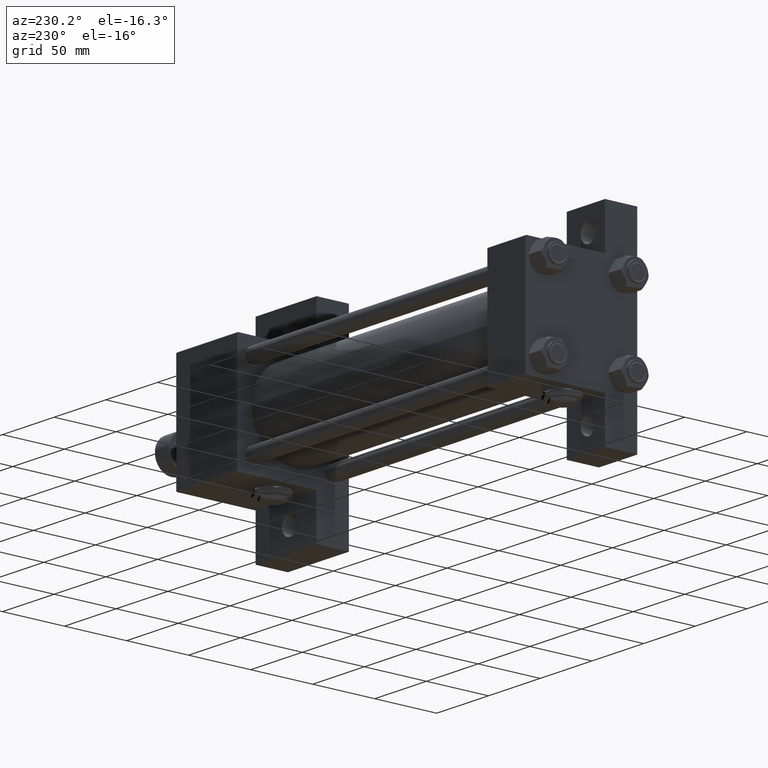
[diagram: clean part render]
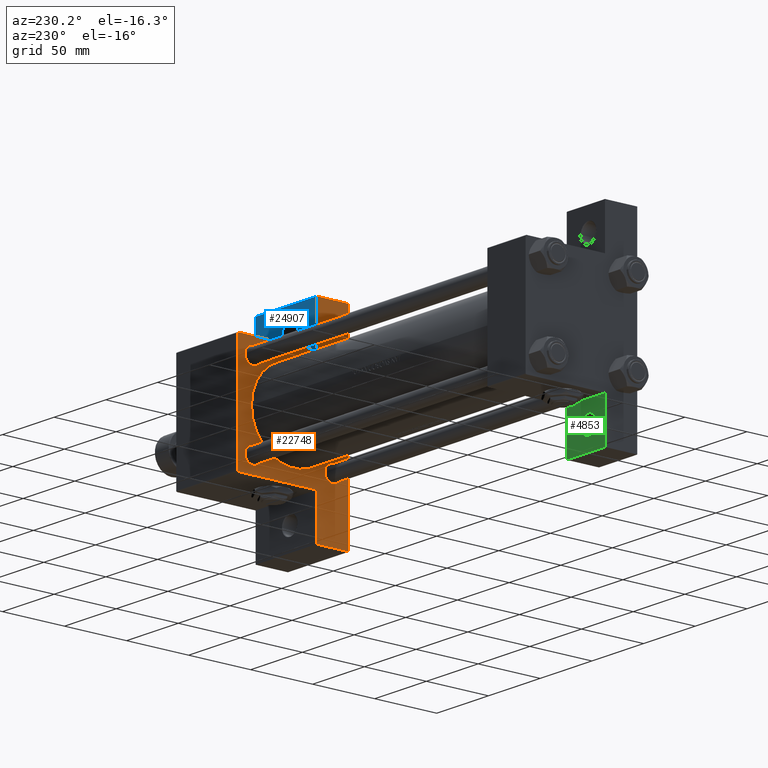
[diagram: same view with three faces highlighted in distinct colors, each labeled with its STEP entity id]
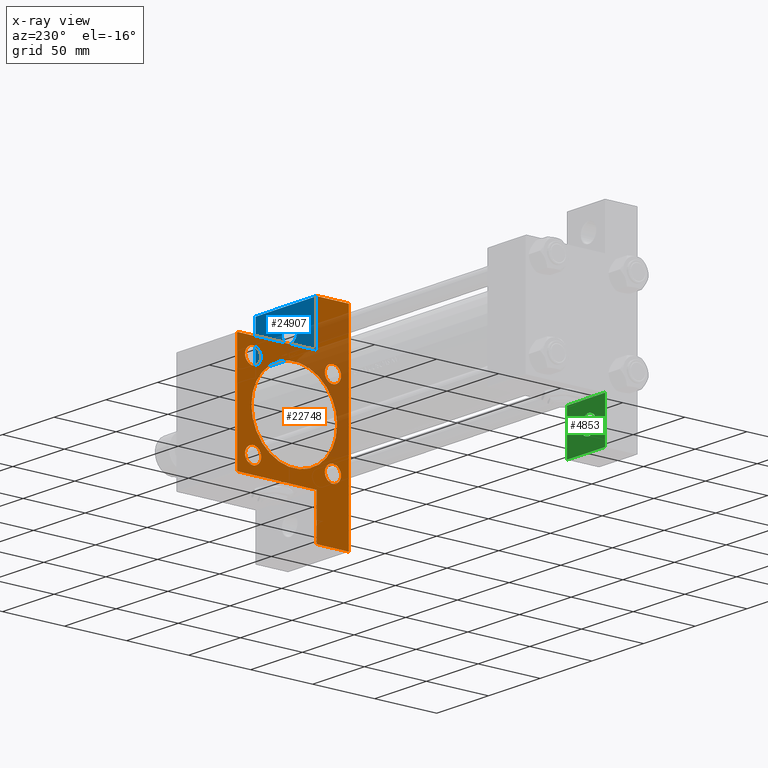
[diagram: x-ray of the same camera — body ghosted, the three highlighted faces saturated]
A machine part, auxiliary view with three faces highlighted in distinct colors.
The next image is the same camera in x-ray (body ghosted, the three faces saturated) — at least one of them is partly hidden behind the body in this view.
Their STEP definitions:

[orange] entity #22748 — the highlighted planar face has unit normal (-1, 0, -0).
#385 = DIRECTION ( 'NONE',  ( -1.000000000000000000, 0.000000000000000000, -0.000000000000000000 ) ) ;
#1907 = VECTOR ( 'NONE', #33787, 1000.000000000000000 ) ;
#2258 = DIRECTION ( 'NONE',  ( 0.000000000000000000, 0.000000000000000000, 1.000000000000000000 ) ) ;
#2765 = LINE ( 'NONE', #18251, #29586 ) ;
#2808 = CARTESIAN_POINT ( 'NONE',  ( 278.9999999999999432, -80.00000000000001421, -45.00000000000000000 ) ) ;
#2852 = ORIENTED_EDGE ( 'NONE', *, *, #48202, .T. ) ;
#2869 = EDGE_CURVE ( 'NONE', #24307, #32228, #24601, .T. ) ;
#2929 = VECTOR ( 'NONE', #34741, 1000.000000000000114 ) ;
#3285 = CARTESIAN_POINT ( 'NONE',  ( 278.9999999999999432, 45.00000000000001421, -45.00000000000000000 ) ) ;
#3676 = EDGE_CURVE ( 'NONE', #30669, #20065, #7955, .T. ) ;
#3980 = VERTEX_POINT ( 'NONE', #45172 ) ;
#4605 = ORIENTED_EDGE ( 'NONE', *, *, #29966, .T. ) ;
#4906 = EDGE_LOOP ( 'NONE', ( #31199, #22990 ) ) ;
#4946 = CARTESIAN_POINT ( 'NONE',  ( 278.9999999999999432, 4.225031457058367344E-15, -35.50000000000000711 ) ) ;
#5421 = CIRCLE ( 'NONE', #13520, 6.499999999999999112 ) ;
#6013 = VECTOR ( 'NONE', #11757, 1000.000000000000000 ) ;
#6314 = VERTEX_POINT ( 'NONE', #41020 ) ;
#7332 = CIRCLE ( 'NONE', #21135, 6.500000000000012434 ) ;
#7735 = CARTESIAN_POINT ( 'NONE',  ( 278.9999999999999432, 0.000000000000000000, 0.000000000000000000 ) ) ;
#7955 = LINE ( 'NONE', #46481, #6013 ) ;
#8130 = DIRECTION ( 'NONE',  ( 1.000000000000000000, 0.000000000000000000, 0.000000000000000000 ) ) ;
#8689 = EDGE_CURVE ( 'NONE', #41772, #28007, #31056, .T. ) ;
#8759 = CIRCLE ( 'NONE', #12024, 34.49999999999999289 ) ;
#9835 = ORIENTED_EDGE ( 'NONE', *, *, #27799, .T. ) ;
#10295 = CARTESIAN_POINT ( 'NONE',  ( 278.9999999999999432, -80.00000000000001421, -19.00000000000000000 ) ) ;
#10333 = ORIENTED_EDGE ( 'NONE', *, *, #11577, .T. ) ;
#10691 = EDGE_CURVE ( 'NONE', #36422, #20065, #21813, .T. ) ;
#10734 = ORIENTED_EDGE ( 'NONE', *, *, #18799, .T. ) ;
#11437 = CARTESIAN_POINT ( 'NONE',  ( 278.9999999999999432, 44.74999999999997158, 44.74999999999997158 ) ) ;
#11577 = EDGE_CURVE ( 'NONE', #35643, #25934, #30694, .T. ) ;
#11684 = EDGE_CURVE ( 'NONE', #32228, #24307, #29648, .T. ) ;
#11757 = DIRECTION ( 'NONE',  ( 0.000000000000000000, 0.000000000000000000, -1.000000000000000000 ) ) ;
#11915 = DIRECTION ( 'NONE',  ( 1.000000000000000000, 0.000000000000000000, 0.000000000000000000 ) ) ;
#12024 = AXIS2_PLACEMENT_3D ( 'NONE', #41599, #30451, #45916 ) ;
#12066 = ORIENTED_EDGE ( 'NONE', *, *, #26638, .T. ) ;
#12310 = FACE_BOUND ( 'NONE', #41695, .T. ) ;
#12560 = DIRECTION ( 'NONE',  ( 0.000000000000000000, 0.000000000000000000, 1.000000000000000000 ) ) ;
#12563 = PLANE ( 'NONE',  #29882 ) ;
#12845 = AXIS2_PLACEMENT_3D ( 'NONE', #25216, #45454, #21665 ) ;
#13116 = ORIENTED_EDGE ( 'NONE', *, *, #24310, .T. ) ;
#13293 = DIRECTION ( 'NONE',  ( 0.000000000000000000, 0.000000000000000000, -1.000000000000000000 ) ) ;
#13520 = AXIS2_PLACEMENT_3D ( 'NONE', #49169, #41313, #40802 ) ;
#13734 = DIRECTION ( 'NONE',  ( 0.000000000000000000, 0.000000000000000000, -1.000000000000000000 ) ) ;
#14522 = EDGE_LOOP ( 'NONE', ( #38354, #10333, #12066, #2852, #10734, #15397, #49712, #45863, #22803, #46455 ) ) ;
#15397 = ORIENTED_EDGE ( 'NONE', *, *, #10691, .T. ) ;
#15410 = DIRECTION ( 'NONE',  ( 1.000000000000000000, 0.000000000000000000, 0.000000000000000000 ) ) ;
#15617 = EDGE_CURVE ( 'NONE', #44775, #6314, #20085, .T. ) ;
#15674 = VERTEX_POINT ( 'NONE', #4946 ) ;
#16070 = ORIENTED_EDGE ( 'NONE', *, *, #15617, .T. ) ;
#16254 = CARTESIAN_POINT ( 'NONE',  ( 278.9999999999999432, 79.99999999999995737, -19.00000000000000000 ) ) ;
#16638 = EDGE_CURVE ( 'NONE', #27115, #35605, #34659, .T. ) ;
#17576 = VERTEX_POINT ( 'NONE', #28979 ) ;
#18251 = CARTESIAN_POINT ( 'NONE',  ( 278.9999999999999432, 45.00000000000001421, 45.00000000000000000 ) ) ;
#18761 = DIRECTION ( 'NONE',  ( 0.000000000000000000, -1.000000000000000000, 0.000000000000000000 ) ) ;
#18799 = EDGE_CURVE ( 'NONE', #30665, #36422, #32717, .T. ) ;
#19273 = CARTESIAN_POINT ( 'NONE',  ( 278.9999999999999432, 45.00000000000001421, 44.49999999999994316 ) ) ;
#19363 = CARTESIAN_POINT ( 'NONE',  ( 278.9999999999999432, -45.00000000000000000, 44.99999999999998579 ) ) ;
#19919 = FACE_BOUND ( 'NONE', #22824, .T. ) ;
#19974 = CARTESIAN_POINT ( 'NONE',  ( 278.9999999999999432, -32.14999999999997726, -32.15000000000001279 ) ) ;
#20065 = VERTEX_POINT ( 'NONE', #2808 ) ;
#20085 = CIRCLE ( 'NONE', #26544, 6.499999999999999112 ) ;
#20536 = DIRECTION ( 'NONE',  ( 0.000000000000000000, 0.000000000000000000, 1.000000000000000000 ) ) ;
#20721 = CARTESIAN_POINT ( 'NONE',  ( 278.9999999999999432, -45.00000000000000000, -19.00000000000000000 ) ) ;
#21135 = AXIS2_PLACEMENT_3D ( 'NONE', #27634, #11915, #20536 ) ;
#21356 = VERTEX_POINT ( 'NONE', #37331 ) ;
#21665 = DIRECTION ( 'NONE',  ( 0.000000000000000000, 0.000000000000000000, 1.000000000000000000 ) ) ;
#21813 = LINE ( 'NONE', #3285, #27996 ) ;
#21821 = EDGE_LOOP ( 'NONE', ( #9835, #25295 ) ) ;
#22613 = AXIS2_PLACEMENT_3D ( 'NONE', #22847, #8130, #38265 ) ;
#22665 = CARTESIAN_POINT ( 'NONE',  ( 278.9999999999999432, 79.99999999999995737, -19.00000000000000000 ) ) ;
#22748 = ADVANCED_FACE ( 'NONE', ( #12310, #27767, #31818, #19919, #39390, #30799 ), #12563, .T. ) ;
#22803 = ORIENTED_EDGE ( 'NONE', *, *, #36170, .F. ) ;
#22824 = EDGE_LOOP ( 'NONE', ( #36397, #41385 ) ) ;
#22842 = CARTESIAN_POINT ( 'NONE',  ( 278.9999999999999432, -45.00000000000000000, 44.49999999999998579 ) ) ;
#22847 = CARTESIAN_POINT ( 'NONE',  ( 278.9999999999999432, -32.14999999999997726, 32.15000000000001279 ) ) ;
#22990 = ORIENTED_EDGE ( 'NONE', *, *, #49450, .T. ) ;
#23537 = VECTOR ( 'NONE', #44623, 1000.000000000000000 ) ;
#23632 = CARTESIAN_POINT ( 'NONE',  ( 278.9999999999999432, 32.14999999999999147, 25.65000000000000213 ) ) ;
#24307 = VERTEX_POINT ( 'NONE', #27410 ) ;
#24310 = EDGE_CURVE ( 'NONE', #43933, #17576, #44458, .T. ) ;
#24368 = CIRCLE ( 'NONE', #46190, 34.49999999999999289 ) ;
#24601 = CIRCLE ( 'NONE', #47244, 6.500000000000012434 ) ;
#24821 = CARTESIAN_POINT ( 'NONE',  ( 278.9999999999999432, -32.14999999999997726, -25.64999999999999858 ) ) ;
#24903 = CARTESIAN_POINT ( 'NONE',  ( 278.9999999999999432, 79.99999999999995737, -45.00000000000000000 ) ) ;
#25216 = CARTESIAN_POINT ( 'NONE',  ( 278.9999999999999432, 32.14999999999999147, -32.15000000000000568 ) ) ;
#25295 = ORIENTED_EDGE ( 'NONE', *, *, #16638, .T. ) ;
#25456 = VERTEX_POINT ( 'NONE', #20721 ) ;
#25773 = DIRECTION ( 'NONE',  ( 0.000000000000000000, 1.000000000000000000, 0.000000000000000000 ) ) ;
#25934 = VERTEX_POINT ( 'NONE', #19273 ) ;
#25977 = LINE ( 'NONE', #22665, #37015 ) ;
#26430 = VECTOR ( 'NONE', #42716, 1000.000000000000114 ) ;
#26544 = AXIS2_PLACEMENT_3D ( 'NONE', #49799, #36334, #12560 ) ;
#26638 = EDGE_CURVE ( 'NONE', #25934, #3980, #32232, .T. ) ;
#27115 = VERTEX_POINT ( 'NONE', #41742 ) ;
#27410 = CARTESIAN_POINT ( 'NONE',  ( 278.9999999999999432, -32.14999999999997726, -38.65000000000002700 ) ) ;
#27616 = EDGE_CURVE ( 'NONE', #21356, #15674, #24368, .T. ) ;
#27634 = CARTESIAN_POINT ( 'NONE',  ( 278.9999999999999432, 32.14999999999999147, -32.15000000000000568 ) ) ;
#27767 = FACE_BOUND ( 'NONE', #42762, .T. ) ;
#27799 = EDGE_CURVE ( 'NONE', #35605, #27115, #7332, .T. ) ;
#27996 = VECTOR ( 'NONE', #18761, 1000.000000000000000 ) ;
#28007 = VERTEX_POINT ( 'NONE', #38948 ) ;
#28979 = CARTESIAN_POINT ( 'NONE',  ( 278.9999999999999432, -32.14999999999997726, 38.65000000000002700 ) ) ;
#29564 = LINE ( 'NONE', #10295, #40239 ) ;
#29586 = VECTOR ( 'NONE', #33680, 1000.000000000000000 ) ;
#29648 = CIRCLE ( 'NONE', #40152, 6.500000000000012434 ) ;
#29717 = CARTESIAN_POINT ( 'NONE',  ( 278.9999999999999432, -32.14999999999997726, 25.64999999999999858 ) ) ;
#29882 = AXIS2_PLACEMENT_3D ( 'NONE', #7735, #385, #34847 ) ;
#29966 = EDGE_CURVE ( 'NONE', #17576, #43933, #45495, .T. ) ;
#30451 = DIRECTION ( 'NONE',  ( 1.000000000000000000, 0.000000000000000000, 0.000000000000000000 ) ) ;
#30665 = VERTEX_POINT ( 'NONE', #16254 ) ;
#30669 = VERTEX_POINT ( 'NONE', #35485 ) ;
#30694 = LINE ( 'NONE', #11437, #2929 ) ;
#30799 = FACE_OUTER_BOUND ( 'NONE', #14522, .T. ) ;
#30854 = DIRECTION ( 'NONE',  ( 0.000000000000000000, 0.000000000000000000, 1.000000000000000000 ) ) ;
#31056 = LINE ( 'NONE', #42966, #26430 ) ;
#31199 = ORIENTED_EDGE ( 'NONE', *, *, #27616, .T. ) ;
#31399 = DIRECTION ( 'NONE',  ( 0.000000000000000000, 0.000000000000000000, 1.000000000000000000 ) ) ;
#31818 = FACE_BOUND ( 'NONE', #21821, .T. ) ;
#32228 = VERTEX_POINT ( 'NONE', #24821 ) ;
#32232 = LINE ( 'NONE', #44874, #23537 ) ;
#32535 = CARTESIAN_POINT ( 'NONE',  ( 278.9999999999999432, 0.000000000000000000, -1.000000000000007772 ) ) ;
#32717 = LINE ( 'NONE', #49178, #44530 ) ;
#33680 = DIRECTION ( 'NONE',  ( 0.000000000000000000, -1.000000000000000000, -1.541976423090495140E-16 ) ) ;
#33787 = DIRECTION ( 'NONE',  ( 0.000000000000000000, 7.709882115452478166E-17, -1.000000000000000000 ) ) ;
#33914 = DIRECTION ( 'NONE',  ( 1.000000000000000000, 0.000000000000000000, 0.000000000000000000 ) ) ;
#34035 = LINE ( 'NONE', #19363, #1907 ) ;
#34156 = CARTESIAN_POINT ( 'NONE',  ( 278.9999999999999432, -32.14999999999997726, -32.15000000000001279 ) ) ;
#34659 = CIRCLE ( 'NONE', #12845, 6.500000000000012434 ) ;
#34741 = DIRECTION ( 'NONE',  ( 0.000000000000000000, 0.7071067811865474617, -0.7071067811865474617 ) ) ;
#34847 = DIRECTION ( 'NONE',  ( -0.000000000000000000, 0.000000000000000000, 1.000000000000000000 ) ) ;
#35485 = CARTESIAN_POINT ( 'NONE',  ( 278.9999999999999432, -80.00000000000001421, -19.00000000000000000 ) ) ;
#35605 = VERTEX_POINT ( 'NONE', #47579 ) ;
#35643 = VERTEX_POINT ( 'NONE', #47821 ) ;
#36170 = EDGE_CURVE ( 'NONE', #41772, #25456, #34035, .T. ) ;
#36323 = DIRECTION ( 'NONE',  ( 1.000000000000000000, 0.000000000000000000, 0.000000000000000000 ) ) ;
#36334 = DIRECTION ( 'NONE',  ( 1.000000000000000000, 0.000000000000000000, 0.000000000000000000 ) ) ;
#36397 = ORIENTED_EDGE ( 'NONE', *, *, #11684, .T. ) ;
#36422 = VERTEX_POINT ( 'NONE', #24903 ) ;
#37015 = VECTOR ( 'NONE', #41166, 1000.000000000000000 ) ;
#37331 = CARTESIAN_POINT ( 'NONE',  ( 278.9999999999999432, 0.000000000000000000, 33.49999999999998579 ) ) ;
#38265 = DIRECTION ( 'NONE',  ( 0.000000000000000000, 0.000000000000000000, 1.000000000000000000 ) ) ;
#38354 = ORIENTED_EDGE ( 'NONE', *, *, #42062, .F. ) ;
#38719 = ORIENTED_EDGE ( 'NONE', *, *, #44873, .T. ) ;
#38733 = DIRECTION ( 'NONE',  ( 1.000000000000000000, 0.000000000000000000, 0.000000000000000000 ) ) ;
#38948 = CARTESIAN_POINT ( 'NONE',  ( 278.9999999999999432, -44.49999999999997158, 44.99999999999998579 ) ) ;
#39390 = FACE_BOUND ( 'NONE', #4906, .T. ) ;
#40152 = AXIS2_PLACEMENT_3D ( 'NONE', #34156, #33914, #2258 ) ;
#40239 = VECTOR ( 'NONE', #25773, 1000.000000000000000 ) ;
#40802 = DIRECTION ( 'NONE',  ( 0.000000000000000000, 0.000000000000000000, 1.000000000000000000 ) ) ;
#41020 = CARTESIAN_POINT ( 'NONE',  ( 278.9999999999999432, 32.14999999999999147, 38.65000000000001279 ) ) ;
#41166 = DIRECTION ( 'NONE',  ( -0.000000000000000000, 1.000000000000000000, -0.000000000000000000 ) ) ;
#41313 = DIRECTION ( 'NONE',  ( 1.000000000000000000, 0.000000000000000000, 0.000000000000000000 ) ) ;
#41385 = ORIENTED_EDGE ( 'NONE', *, *, #2869, .T. ) ;
#41599 = CARTESIAN_POINT ( 'NONE',  ( 278.9999999999999432, 0.000000000000000000, -1.000000000000007772 ) ) ;
#41695 = EDGE_LOOP ( 'NONE', ( #4605, #13116 ) ) ;
#41742 = CARTESIAN_POINT ( 'NONE',  ( 278.9999999999999432, 32.14999999999999147, -38.65000000000001990 ) ) ;
#41772 = VERTEX_POINT ( 'NONE', #22842 ) ;
#42062 = EDGE_CURVE ( 'NONE', #35643, #28007, #2765, .T. ) ;
#42716 = DIRECTION ( 'NONE',  ( -0.000000000000000000, 0.7071067811865474617, 0.7071067811865474617 ) ) ;
#42762 = EDGE_LOOP ( 'NONE', ( #38719, #16070 ) ) ;
#42966 = CARTESIAN_POINT ( 'NONE',  ( 278.9999999999999432, -44.74999999999999289, 44.74999999999999289 ) ) ;
#43564 = CARTESIAN_POINT ( 'NONE',  ( 278.9999999999999432, -32.14999999999997726, 32.15000000000001279 ) ) ;
#43879 = AXIS2_PLACEMENT_3D ( 'NONE', #43564, #38733, #31399 ) ;
#43933 = VERTEX_POINT ( 'NONE', #29717 ) ;
#44458 = CIRCLE ( 'NONE', #22613, 6.500000000000012434 ) ;
#44530 = VECTOR ( 'NONE', #13734, 1000.000000000000000 ) ;
#44623 = DIRECTION ( 'NONE',  ( 0.000000000000000000, 0.000000000000000000, -1.000000000000000000 ) ) ;
#44775 = VERTEX_POINT ( 'NONE', #23632 ) ;
#44873 = EDGE_CURVE ( 'NONE', #6314, #44775, #5421, .T. ) ;
#44874 = CARTESIAN_POINT ( 'NONE',  ( 278.9999999999999432, 45.00000000000001421, 45.00000000000000000 ) ) ;
#45172 = CARTESIAN_POINT ( 'NONE',  ( 278.9999999999999432, 45.00000000000001421, -18.99999999999997513 ) ) ;
#45454 = DIRECTION ( 'NONE',  ( 1.000000000000000000, 0.000000000000000000, 0.000000000000000000 ) ) ;
#45495 = CIRCLE ( 'NONE', #43879, 6.500000000000012434 ) ;
#45863 = ORIENTED_EDGE ( 'NONE', *, *, #47240, .T. ) ;
#45916 = DIRECTION ( 'NONE',  ( 0.000000000000000000, 0.000000000000000000, -1.000000000000000000 ) ) ;
#46190 = AXIS2_PLACEMENT_3D ( 'NONE', #32535, #36323, #13293 ) ;
#46455 = ORIENTED_EDGE ( 'NONE', *, *, #8689, .T. ) ;
#46481 = CARTESIAN_POINT ( 'NONE',  ( 278.9999999999999432, -80.00000000000001421, -19.00000000000000000 ) ) ;
#47240 = EDGE_CURVE ( 'NONE', #30669, #25456, #29564, .T. ) ;
#47244 = AXIS2_PLACEMENT_3D ( 'NONE', #19974, #15410, #30854 ) ;
#47579 = CARTESIAN_POINT ( 'NONE',  ( 278.9999999999999432, 32.14999999999999147, -25.64999999999999147 ) ) ;
#47821 = CARTESIAN_POINT ( 'NONE',  ( 278.9999999999999432, 44.49999999999995737, 45.00000000000000000 ) ) ;
#48202 = EDGE_CURVE ( 'NONE', #3980, #30665, #25977, .T. ) ;
#49169 = CARTESIAN_POINT ( 'NONE',  ( 278.9999999999999432, 32.14999999999999147, 32.15000000000000568 ) ) ;
#49178 = CARTESIAN_POINT ( 'NONE',  ( 278.9999999999999432, 79.99999999999995737, -19.00000000000000000 ) ) ;
#49450 = EDGE_CURVE ( 'NONE', #15674, #21356, #8759, .T. ) ;
#49712 = ORIENTED_EDGE ( 'NONE', *, *, #3676, .F. ) ;
#49799 = CARTESIAN_POINT ( 'NONE',  ( 278.9999999999999432, 32.14999999999999147, 32.15000000000000568 ) ) ;

[blue] entity #24907 — the highlighted planar face has unit normal (0, -1, 0).
#860 = FACE_BOUND ( 'NONE', #40241, .T. ) ;
#1407 = CARTESIAN_POINT ( 'NONE',  ( 278.9999999999999432, -80.00000000000001421, -19.00000000000000000 ) ) ;
#2082 = ORIENTED_EDGE ( 'NONE', *, *, #22180, .F. ) ;
#2153 = EDGE_CURVE ( 'NONE', #15929, #30669, #36104, .T. ) ;
#2278 = CARTESIAN_POINT ( 'NONE',  ( 312.4994999999999550, -62.00000000000000000, -19.00000000000000000 ) ) ;
#3656 = CARTESIAN_POINT ( 'NONE',  ( 297.5004999999999313, -62.00000000000000000, -19.00000000000000000 ) ) ;
#4643 = CARTESIAN_POINT ( 'NONE',  ( 337.9999999999999432, -80.00000000000004263, -19.00000000000000000 ) ) ;
#6335 = DIRECTION ( 'NONE',  ( -1.000000000000000000, 0.000000000000000000, 0.000000000000000000 ) ) ;
#6679 = LINE ( 'NONE', #22157, #47657 ) ;
#8708 = DIRECTION ( 'NONE',  ( 0.000000000000000000, 0.000000000000000000, -1.000000000000000000 ) ) ;
#9892 = CARTESIAN_POINT ( 'NONE',  ( 304.9999999999999432, -62.00000000000000000, -19.00000000000000000 ) ) ;
#10295 = CARTESIAN_POINT ( 'NONE',  ( 278.9999999999999432, -80.00000000000001421, -19.00000000000000000 ) ) ;
#10647 = EDGE_CURVE ( 'NONE', #28113, #25372, #19087, .T. ) ;
#10655 = DIRECTION ( 'NONE',  ( -1.000000000000000000, 0.000000000000000000, 0.000000000000000000 ) ) ;
#10775 = CIRCLE ( 'NONE', #14013, 7.499499999999992284 ) ;
#11246 = ORIENTED_EDGE ( 'NONE', *, *, #2153, .F. ) ;
#12603 = ORIENTED_EDGE ( 'NONE', *, *, #32054, .T. ) ;
#13963 = DIRECTION ( 'NONE',  ( 0.000000000000000000, 0.000000000000000000, -1.000000000000000000 ) ) ;
#14013 = AXIS2_PLACEMENT_3D ( 'NONE', #18030, #21828, #10655 ) ;
#15563 = CARTESIAN_POINT ( 'NONE',  ( 0.000000000000000000, 0.000000000000000000, -19.00000000000000000 ) ) ;
#15929 = VERTEX_POINT ( 'NONE', #30484 ) ;
#18030 = CARTESIAN_POINT ( 'NONE',  ( 304.9999999999999432, -62.00000000000000000, -19.00000000000000000 ) ) ;
#18207 = VERTEX_POINT ( 'NONE', #18959 ) ;
#18917 = VECTOR ( 'NONE', #40151, 1000.000000000000000 ) ;
#18959 = CARTESIAN_POINT ( 'NONE',  ( 337.9999999999999432, -44.99999999999999289, -18.99999999999997513 ) ) ;
#19087 = CIRCLE ( 'NONE', #49032, 7.499499999999992284 ) ;
#20116 = DIRECTION ( 'NONE',  ( -0.000000000000000000, -1.000000000000000000, -0.000000000000000000 ) ) ;
#20721 = CARTESIAN_POINT ( 'NONE',  ( 278.9999999999999432, -45.00000000000000000, -19.00000000000000000 ) ) ;
#21666 = EDGE_LOOP ( 'NONE', ( #45084, #2082, #37632, #11246 ) ) ;
#21828 = DIRECTION ( 'NONE',  ( 0.000000000000000000, 0.000000000000000000, -1.000000000000000000 ) ) ;
#22157 = CARTESIAN_POINT ( 'NONE',  ( 278.9999999999999432, -45.00000000000000000, -19.00000000000000000 ) ) ;
#22180 = EDGE_CURVE ( 'NONE', #25456, #18207, #6679, .T. ) ;
#23909 = LINE ( 'NONE', #4643, #40708 ) ;
#24182 = DIRECTION ( 'NONE',  ( -1.000000000000000000, 0.000000000000000000, -0.000000000000000000 ) ) ;
#24907 = ADVANCED_FACE ( 'NONE', ( #860, #42922 ), #43427, .F. ) ;
#25372 = VERTEX_POINT ( 'NONE', #2278 ) ;
#25456 = VERTEX_POINT ( 'NONE', #20721 ) ;
#25773 = DIRECTION ( 'NONE',  ( 0.000000000000000000, 1.000000000000000000, 0.000000000000000000 ) ) ;
#28113 = VERTEX_POINT ( 'NONE', #3656 ) ;
#29564 = LINE ( 'NONE', #10295, #40239 ) ;
#30484 = CARTESIAN_POINT ( 'NONE',  ( 337.9999999999999432, -80.00000000000004263, -19.00000000000000000 ) ) ;
#30669 = VERTEX_POINT ( 'NONE', #35485 ) ;
#32054 = EDGE_CURVE ( 'NONE', #25372, #28113, #10775, .T. ) ;
#35485 = CARTESIAN_POINT ( 'NONE',  ( 278.9999999999999432, -80.00000000000001421, -19.00000000000000000 ) ) ;
#36104 = LINE ( 'NONE', #1407, #18917 ) ;
#36407 = EDGE_CURVE ( 'NONE', #18207, #15929, #23909, .T. ) ;
#37579 = DIRECTION ( 'NONE',  ( 1.000000000000000000, 0.000000000000000000, 0.000000000000000000 ) ) ;
#37632 = ORIENTED_EDGE ( 'NONE', *, *, #47240, .F. ) ;
#37659 = ORIENTED_EDGE ( 'NONE', *, *, #10647, .T. ) ;
#40151 = DIRECTION ( 'NONE',  ( -1.000000000000000000, 4.704334850106595794E-16, -0.000000000000000000 ) ) ;
#40239 = VECTOR ( 'NONE', #25773, 1000.000000000000000 ) ;
#40241 = EDGE_LOOP ( 'NONE', ( #12603, #37659 ) ) ;
#40708 = VECTOR ( 'NONE', #20116, 1000.000000000000000 ) ;
#42922 = FACE_OUTER_BOUND ( 'NONE', #21666, .T. ) ;
#43427 = PLANE ( 'NONE',  #43712 ) ;
#43712 = AXIS2_PLACEMENT_3D ( 'NONE', #15563, #8708, #24182 ) ;
#45084 = ORIENTED_EDGE ( 'NONE', *, *, #36407, .F. ) ;
#47240 = EDGE_CURVE ( 'NONE', #30669, #25456, #29564, .T. ) ;
#47657 = VECTOR ( 'NONE', #37579, 1000.000000000000000 ) ;
#49032 = AXIS2_PLACEMENT_3D ( 'NONE', #9892, #13963, #6335 ) ;

[green] entity #4853 — the highlighted planar face has unit normal (0, -1, 0).
#331 = CARTESIAN_POINT ( 'NONE',  ( 37.00000000000001421, 45.00000000000002132, -18.99999999999999645 ) ) ;
#389 = ORIENTED_EDGE ( 'NONE', *, *, #23505, .T. ) ;
#747 = VERTEX_POINT ( 'NONE', #6302 ) ;
#1109 = EDGE_CURVE ( 'NONE', #37521, #16792, #22962, .T. ) ;
#1171 = EDGE_CURVE ( 'NONE', #25158, #25996, #39912, .T. ) ;
#3692 = CARTESIAN_POINT ( 'NONE',  ( 1.030725107000828166E-14, 45.00000000000004263, -19.00000000000000355 ) ) ;
#3984 = VECTOR ( 'NONE', #28826, 1000.000000000000000 ) ;
#4417 = VERTEX_POINT ( 'NONE', #28785 ) ;
#4853 = ADVANCED_FACE ( 'NONE', ( #25931, #41360 ), #29721, .F. ) ;
#4990 = CARTESIAN_POINT ( 'NONE',  ( 16.00000000000000000, 61.99999999999997158, -19.00000000000000000 ) ) ;
#6302 = CARTESIAN_POINT ( 'NONE',  ( 1.999206976185762377E-14, 80.00000000000001421, -18.99999999999999645 ) ) ;
#6401 = CARTESIAN_POINT ( 'NONE',  ( 0.000000000000000000, 0.000000000000000000, -19.00000000000000000 ) ) ;
#7184 = ORIENTED_EDGE ( 'NONE', *, *, #18467, .T. ) ;
#7666 = EDGE_LOOP ( 'NONE', ( #12939, #7184 ) ) ;
#10715 = EDGE_CURVE ( 'NONE', #16792, #4417, #14461, .T. ) ;
#12939 = ORIENTED_EDGE ( 'NONE', *, *, #1171, .T. ) ;
#13303 = CARTESIAN_POINT ( 'NONE',  ( 0.000000000000000000, 44.99999999999998579, -18.99999999999997513 ) ) ;
#13779 = EDGE_LOOP ( 'NONE', ( #389, #47008, #44181, #21693 ) ) ;
#14461 = LINE ( 'NONE', #48915, #15070 ) ;
#15070 = VECTOR ( 'NONE', #34185, 1000.000000000000000 ) ;
#16630 = DIRECTION ( 'NONE',  ( -1.000000000000000000, 0.000000000000000000, 0.000000000000000000 ) ) ;
#16792 = VERTEX_POINT ( 'NONE', #331 ) ;
#18467 = EDGE_CURVE ( 'NONE', #25996, #25158, #23528, .T. ) ;
#19019 = AXIS2_PLACEMENT_3D ( 'NONE', #6401, #48974, #37533 ) ;
#19171 = DIRECTION ( 'NONE',  ( 1.000000000000000000, -3.750753461571474452E-16, 0.000000000000000000 ) ) ;
#19373 = LINE ( 'NONE', #43418, #24985 ) ;
#19726 = AXIS2_PLACEMENT_3D ( 'NONE', #31823, #28766, #16630 ) ;
#19777 = CARTESIAN_POINT ( 'NONE',  ( 8.500500000000004164, 61.99999999999997158, -19.00000000000000000 ) ) ;
#21222 = CARTESIAN_POINT ( 'NONE',  ( 1.999206976185762692E-14, 80.00000000000002842, -18.99999999999999645 ) ) ;
#21693 = ORIENTED_EDGE ( 'NONE', *, *, #22267, .T. ) ;
#22267 = EDGE_CURVE ( 'NONE', #4417, #747, #19373, .T. ) ;
#22683 = AXIS2_PLACEMENT_3D ( 'NONE', #4990, #23758, #28061 ) ;
#22962 = LINE ( 'NONE', #3692, #40737 ) ;
#23369 = CARTESIAN_POINT ( 'NONE',  ( 23.49949999999999761, 61.99999999999997158, -19.00000000000000000 ) ) ;
#23505 = EDGE_CURVE ( 'NONE', #747, #37521, #40704, .T. ) ;
#23528 = CIRCLE ( 'NONE', #22683, 7.499499999999995836 ) ;
#23758 = DIRECTION ( 'NONE',  ( 0.000000000000000000, 0.000000000000000000, -1.000000000000000000 ) ) ;
#24985 = VECTOR ( 'NONE', #46467, 1000.000000000000000 ) ;
#25158 = VERTEX_POINT ( 'NONE', #23369 ) ;
#25931 = FACE_BOUND ( 'NONE', #7666, .T. ) ;
#25996 = VERTEX_POINT ( 'NONE', #19777 ) ;
#28061 = DIRECTION ( 'NONE',  ( -1.000000000000000000, 0.000000000000000000, 0.000000000000000000 ) ) ;
#28766 = DIRECTION ( 'NONE',  ( 0.000000000000000000, 0.000000000000000000, -1.000000000000000000 ) ) ;
#28785 = CARTESIAN_POINT ( 'NONE',  ( 37.00000000000002132, 80.00000000000001421, -18.99999999999999645 ) ) ;
#28826 = DIRECTION ( 'NONE',  ( -2.767091054814098392E-16, -1.000000000000000000, 0.000000000000000000 ) ) ;
#29721 = PLANE ( 'NONE',  #19019 ) ;
#31823 = CARTESIAN_POINT ( 'NONE',  ( 16.00000000000000000, 61.99999999999997158, -19.00000000000000000 ) ) ;
#34185 = DIRECTION ( 'NONE',  ( 1.982541115402065110E-16, 1.000000000000000000, 0.000000000000000000 ) ) ;
#37521 = VERTEX_POINT ( 'NONE', #13303 ) ;
#37533 = DIRECTION ( 'NONE',  ( -1.000000000000000000, 0.000000000000000000, -0.000000000000000000 ) ) ;
#39912 = CIRCLE ( 'NONE', #19726, 7.499499999999995836 ) ;
#40704 = LINE ( 'NONE', #21222, #3984 ) ;
#40737 = VECTOR ( 'NONE', #19171, 1000.000000000000000 ) ;
#41360 = FACE_OUTER_BOUND ( 'NONE', #13779, .T. ) ;
#43418 = CARTESIAN_POINT ( 'NONE',  ( 1.999206976185762377E-14, 80.00000000000001421, -18.99999999999999645 ) ) ;
#44181 = ORIENTED_EDGE ( 'NONE', *, *, #10715, .T. ) ;
#46467 = DIRECTION ( 'NONE',  ( -1.000000000000000000, 0.000000000000000000, 0.000000000000000000 ) ) ;
#47008 = ORIENTED_EDGE ( 'NONE', *, *, #1109, .T. ) ;
#48915 = CARTESIAN_POINT ( 'NONE',  ( 37.00000000000002132, 80.00000000000002842, -18.99999999999999645 ) ) ;
#48974 = DIRECTION ( 'NONE',  ( 0.000000000000000000, 0.000000000000000000, -1.000000000000000000 ) ) ;